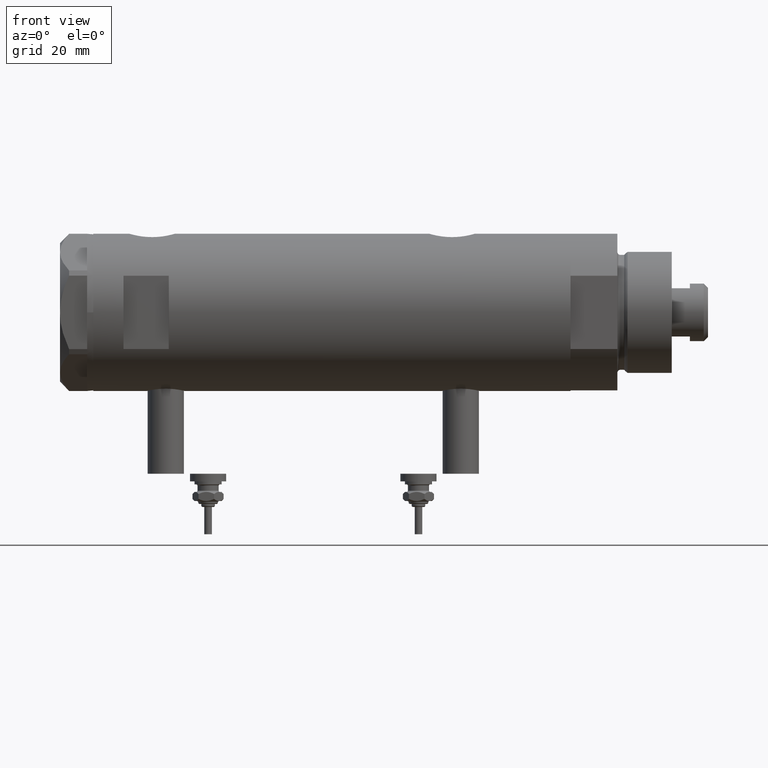
[diagram: clean part render]
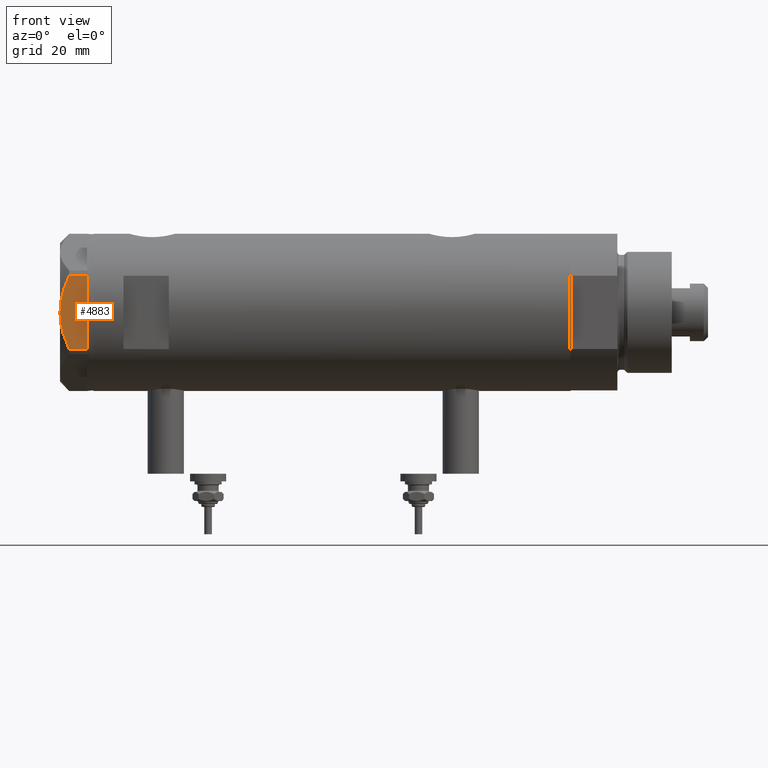
[diagram: same view with one face highlighted and labeled with its STEP entity id]
A machine part, front view. The second image highlights one B-rep face of the part: STEP entity #4883.
In plain terms, the highlighted planar face has unit normal (-0, 1, -0).
Its self-contained STEP definition (entity closure, byte-faithful):
#35 = CARTESIAN_POINT ( 'NONE',  ( -22.99999999999996803, 4.194757081058972936, 8.703000351525203016 ) ) ;
#221 = CARTESIAN_POINT ( 'NONE',  ( -23.00000000000004619, -8.112498833180673323E-14, 9.000000000000000000 ) ) ;
#257 = ORIENTED_EDGE ( 'NONE', *, *, #793, .F. ) ;
#265 = DIRECTION ( 'NONE',  ( 3.527173405730720141E-15, -1.000000000000000000, 0.000000000000000000 ) ) ;
#368 = FACE_OUTER_BOUND ( 'NONE', #1950, .T. ) ;
#567 = EDGE_CURVE ( 'NONE', #1726, #4822, #5142, .T. ) ;
#689 = ORIENTED_EDGE ( 'NONE', *, *, #5348, .T. ) ;
#709 = CARTESIAN_POINT ( 'NONE',  ( -22.99999999999990763, -12.15905619136147386, 9.000000000000000000 ) ) ;
#736 = CARTESIAN_POINT ( 'NONE',  ( -22.99999999999999645, 13.27905619136132032, 0.000000000000000000 ) ) ;
#793 = EDGE_CURVE ( 'NONE', #4296, #1326, #3562, .T. ) ;
#965 = CARTESIAN_POINT ( 'NONE',  ( -22.99999999999990763, -11.68282849742335827, 6.206372352695425754 ) ) ;
#991 = CARTESIAN_POINT ( 'NONE',  ( -22.99999999999999289, 12.12435565298215856, 0.000000000000000000 ) ) ;
#1040 = EDGE_CURVE ( 'NONE', #4962, #3098, #4507, .T. ) ;
#1048 = LINE ( 'NONE', #4368, #1365 ) ;
#1326 = VERTEX_POINT ( 'NONE', #221 ) ;
#1351 = DIRECTION ( 'NONE',  ( 3.527173405730720141E-15, -1.000000000000000000, 0.000000000000000000 ) ) ;
#1365 = VECTOR ( 'NONE', #3396, 1000.000000000000000 ) ;
#1415 = EDGE_CURVE ( 'NONE', #1326, #4822, #6206, .T. ) ;
#1430 = VECTOR ( 'NONE', #3090, 1000.000000000000000 ) ;
#1723 = CARTESIAN_POINT ( 'NONE',  ( -22.99999999999990763, -12.15905619136147564, 5.983800287807627072 ) ) ;
#1726 = VERTEX_POINT ( 'NONE', #2737 ) ;
#1902 = CARTESIAN_POINT ( 'NONE',  ( -22.99999999999998224, 8.246028007352361300, 7.571131808646907935 ) ) ;
#1938 = CARTESIAN_POINT ( 'NONE',  ( -22.99999999999995026, -1.063773509315737442, 8.981438083606830602 ) ) ;
#1950 = EDGE_LOOP ( 'NONE', ( #257, #5517, #689, #3932, #5704, #5807, #3942 ) ) ;
#2146 = CARTESIAN_POINT ( 'NONE',  ( -22.99999999999999289, 12.15905619136133176, 0.000000000000000000 ) ) ;
#2274 = CARTESIAN_POINT ( 'NONE',  ( -22.99999999999991118, -10.22738952213794761, 6.832470313674783746 ) ) ;
#2307 = CARTESIAN_POINT ( 'NONE',  ( -22.99999999999993960, -2.119709279061923191, 8.908535212173198659 ) ) ;
#2352 = CARTESIAN_POINT ( 'NONE',  ( -22.99999999999998579, 10.23890159976122050, 6.840812428290914404 ) ) ;
#2386 = CARTESIAN_POINT ( 'NONE',  ( -22.99999999999999645, 13.27905619136132032, 0.000000000000000000 ) ) ;
#2511 = CARTESIAN_POINT ( 'NONE',  ( -23.00000000000004619, -8.112498833180673323E-14, 9.000000000000000000 ) ) ;
#2692 = VERTEX_POINT ( 'NONE', #2146 ) ;
#2699 = DIRECTION ( 'NONE',  ( 3.527173405730720141E-15, -1.000000000000000000, 0.000000000000000000 ) ) ;
#2737 = CARTESIAN_POINT ( 'NONE',  ( -22.99999999999990763, -12.15905619136147386, 0.000000000000000000 ) ) ;
#2749 = CARTESIAN_POINT ( 'NONE',  ( -22.99999999999993250, -4.203926054641964782, 8.641681223122507305 ) ) ;
#2927 = CARTESIAN_POINT ( 'NONE',  ( -22.99999999999993960, -2.643615312305158671, 8.854304560636265364 ) ) ;
#2993 = AXIS2_PLACEMENT_3D ( 'NONE', #3941, #4920, #3972 ) ;
#3090 = DIRECTION ( 'NONE',  ( 0.000000000000000000, 0.000000000000000000, 1.000000000000000000 ) ) ;
#3098 = VERTEX_POINT ( 'NONE', #5538 ) ;
#3274 = VECTOR ( 'NONE', #265, 1000.000000000000000 ) ;
#3396 = DIRECTION ( 'NONE',  ( 0.000000000000000000, 0.000000000000000000, -1.000000000000000000 ) ) ;
#3562 = B_SPLINE_CURVE_WITH_KNOTS ( 'NONE', 3,
 ( #6275, #4231, #2352, #6238, #1902, #3842, #5777, #35, #4416, #2511 ),
 .UNSPECIFIED., .F., .F.,
 ( 4, 2, 2, 2, 4 ),
 ( 0.03516523594057416324, 0.03831677594541234300, 0.03989254594783143981, 0.04146831595025052969, 0.04777139595992690307 ),
 .UNSPECIFIED. ) ;
#3738 = CARTESIAN_POINT ( 'NONE',  ( -22.99999999999991829, -8.252113629125268801, 7.581642062680223226 ) ) ;
#3765 = CARTESIAN_POINT ( 'NONE',  ( -22.99999999999992184, -7.253003311474388148, 7.903276810347638737 ) ) ;
#3842 = CARTESIAN_POINT ( 'NONE',  ( -22.99999999999996803, 7.239756182922199024, 7.892186063422847120 ) ) ;
#3880 = CARTESIAN_POINT ( 'NONE',  ( -22.99999999999991118, -11.20155944044816287, 6.421102682632757741 ) ) ;
#3932 = ORIENTED_EDGE ( 'NONE', *, *, #1040, .T. ) ;
#3941 = CARTESIAN_POINT ( 'NONE',  ( -22.99999999999999645, 13.27905619136132032, 9.000000000000000000 ) ) ;
#3942 = ORIENTED_EDGE ( 'NONE', *, *, #1415, .F. ) ;
#3972 = DIRECTION ( 'NONE',  ( -3.527173405730720141E-15, 1.000000000000000000, 0.000000000000000000 ) ) ;
#4014 = VECTOR ( 'NONE', #1351, 1000.000000000000000 ) ;
#4231 = CARTESIAN_POINT ( 'NONE',  ( -22.99999999999998934, 11.20825071633916359, 6.428173306378450746 ) ) ;
#4264 = PLANE ( 'NONE',  #2993 ) ;
#4296 = VERTEX_POINT ( 'NONE', #5868 ) ;
#4368 = CARTESIAN_POINT ( 'NONE',  ( -22.99999999999999289, 12.15905619136133176, 9.000000000000000000 ) ) ;
#4416 = CARTESIAN_POINT ( 'NONE',  ( -22.99999999999995381, 2.122900714018063795, 9.000000000000092371 ) ) ;
#4507 = LINE ( 'NONE', #6105, #3274 ) ;
#4822 = VERTEX_POINT ( 'NONE', #4828 ) ;
#4828 = CARTESIAN_POINT ( 'NONE',  ( -22.99999999999990763, -12.15905619136147564, 5.983800287807627072 ) ) ;
#4857 = CARTESIAN_POINT ( 'NONE',  ( -22.99999999999992895, -5.228918809624124364, 8.433337033849854336 ) ) ;
#4883 = ADVANCED_FACE ( 'NONE', ( #368 ), #4264, .F. ) ;
#4920 = DIRECTION ( 'NONE',  ( 1.000000000000000000, 3.527173405730720141E-15, -0.000000000000000000 ) ) ;
#4962 = VERTEX_POINT ( 'NONE', #991 ) ;
#5099 = LINE ( 'NONE', #736, #5836 ) ;
#5142 = LINE ( 'NONE', #709, #1430 ) ;
#5156 = CARTESIAN_POINT ( 'NONE',  ( -22.99999999999991829, -9.734726261263297431, 7.028924700095662281 ) ) ;
#5348 = EDGE_CURVE ( 'NONE', #2692, #4962, #5650, .T. ) ;
#5517 = ORIENTED_EDGE ( 'NONE', *, *, #5749, .T. ) ;
#5538 = CARTESIAN_POINT ( 'NONE',  ( -22.99999999999990763, -12.12435565298232021, 0.000000000000000000 ) ) ;
#5597 = EDGE_CURVE ( 'NONE', #3098, #1726, #5099, .T. ) ;
#5650 = LINE ( 'NONE', #2386, #4014 ) ;
#5704 = ORIENTED_EDGE ( 'NONE', *, *, #5597, .T. ) ;
#5749 = EDGE_CURVE ( 'NONE', #4296, #2692, #1048, .T. ) ;
#5777 = CARTESIAN_POINT ( 'NONE',  ( -22.99999999999997158, 6.734330413511419700, 8.039389741252668031 ) ) ;
#5807 = ORIENTED_EDGE ( 'NONE', *, *, #567, .T. ) ;
#5820 = CARTESIAN_POINT ( 'NONE',  ( -22.99999999999995737, -0.5295934231897764244, 9.000000000000092371 ) ) ;
#5836 = VECTOR ( 'NONE', #2699, 1000.000000000000000 ) ;
#5868 = CARTESIAN_POINT ( 'NONE',  ( -22.99999999999999289, 12.15905619136133176, 5.983800287807616414 ) ) ;
#6098 = CARTESIAN_POINT ( 'NONE',  ( -23.00000000000004619, -8.112498833180673323E-14, 9.000000000000000000 ) ) ;
#6105 = CARTESIAN_POINT ( 'NONE',  ( -22.99999999999999645, 13.27905619136132032, 0.000000000000000000 ) ) ;
#6206 = B_SPLINE_CURVE_WITH_KNOTS ( 'NONE', 3,
 ( #6098, #5820, #1938, #2307, #2927, #2749, #4857, #3765, #3738, #5156, #2274, #3880, #965, #1723 ),
 .UNSPECIFIED., .F., .F.,
 ( 4, 2, 2, 2, 2, 2, 4 ),
 ( 0.04777139595992690307, 0.04934380568070229761, 0.05091621540147769215, 0.05406103484302848122, 0.05720585428457927030, 0.05877826400535466483, 0.06035067372613005937 ),
 .UNSPECIFIED. ) ;
#6238 = CARTESIAN_POINT ( 'NONE',  ( -22.99999999999997513, 8.748091966971378142, 7.396818978284571244 ) ) ;
#6275 = CARTESIAN_POINT ( 'NONE',  ( -22.99999999999999289, 12.15905619136133176, 5.983800287807616414 ) ) ;